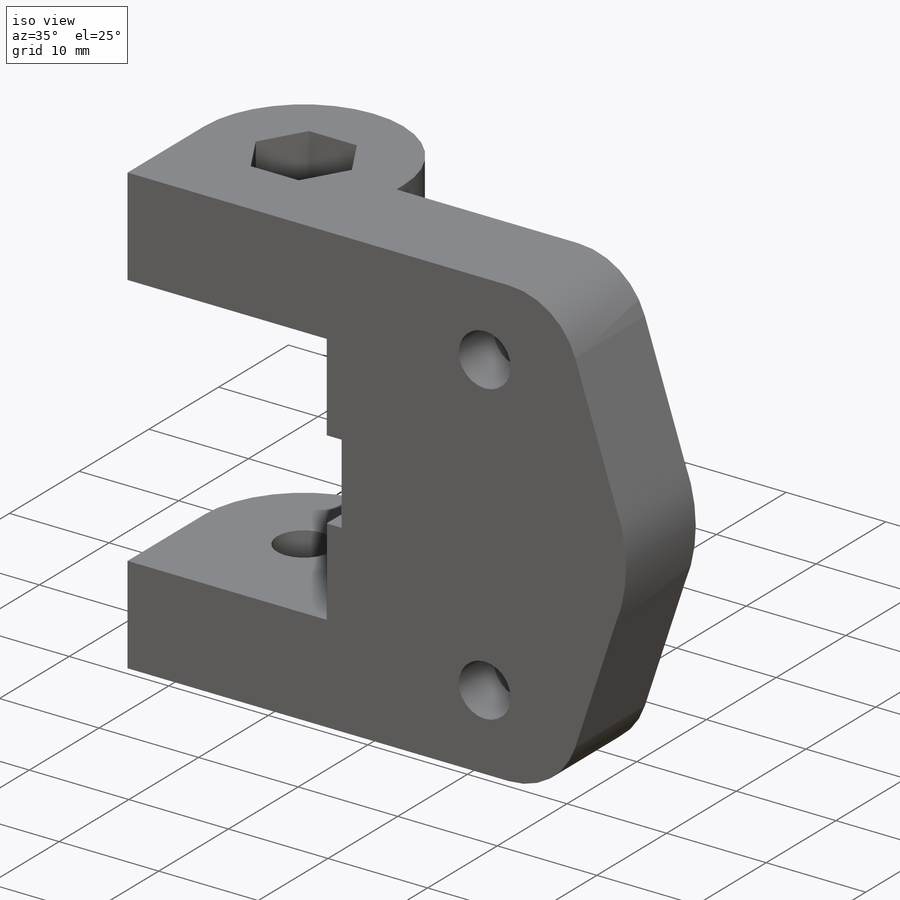
[diagram: iso view]
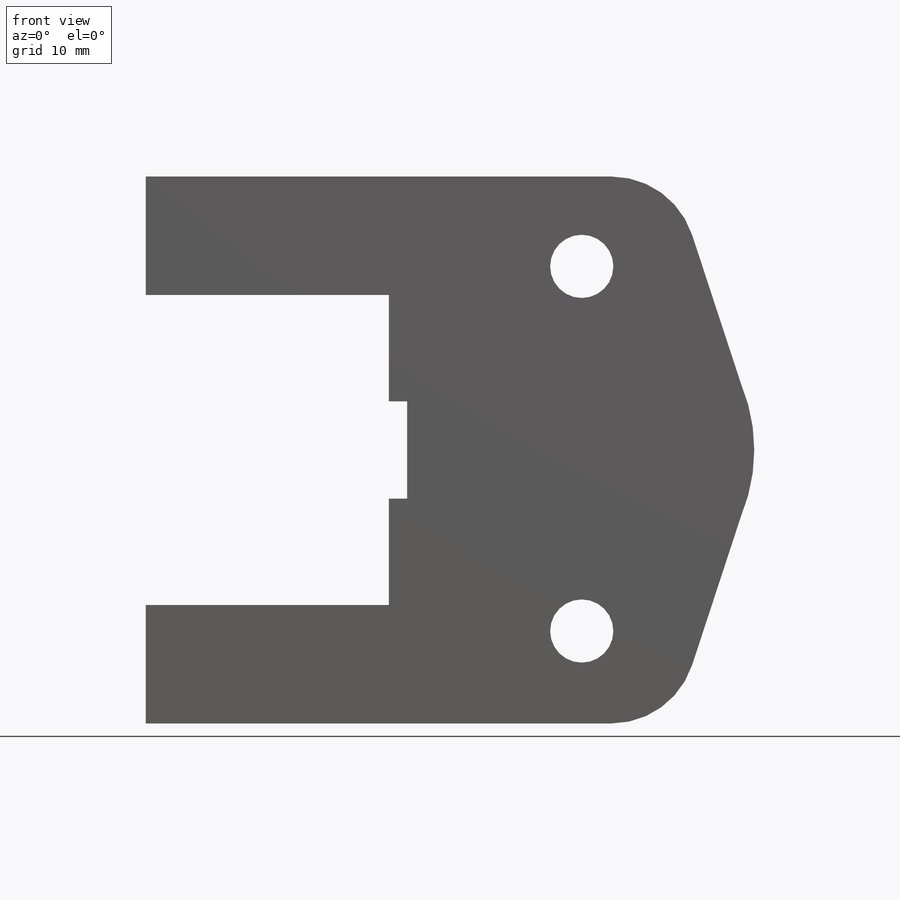
[diagram: front view]
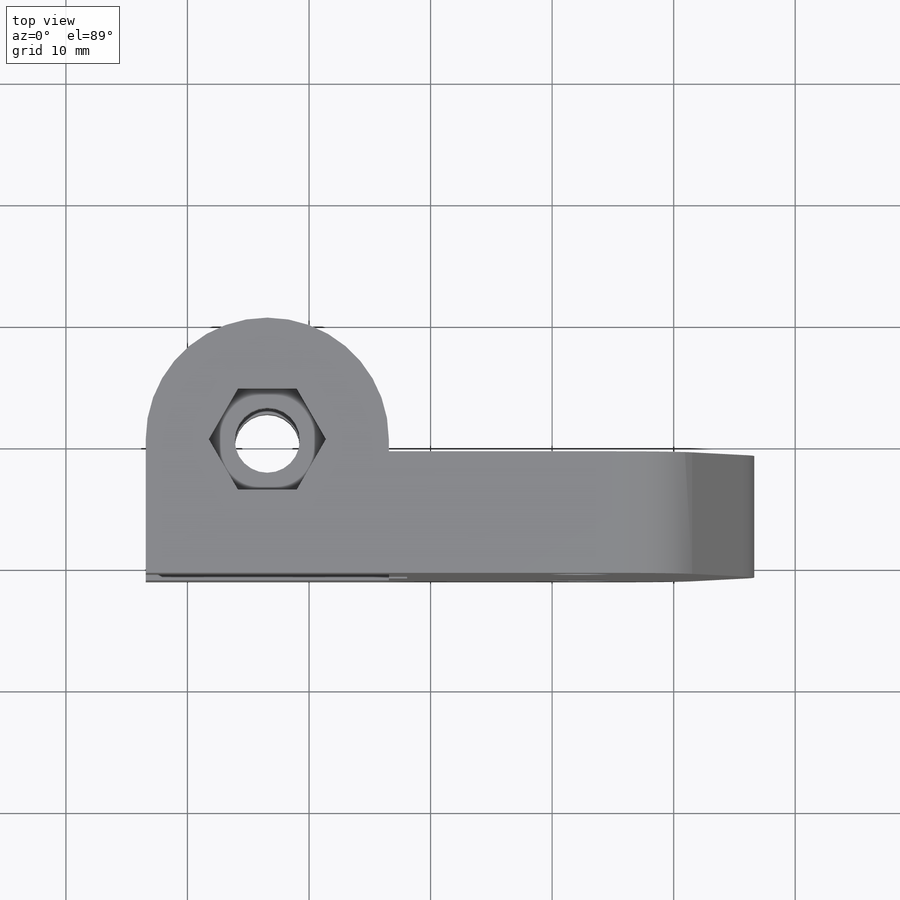
[diagram: top view]
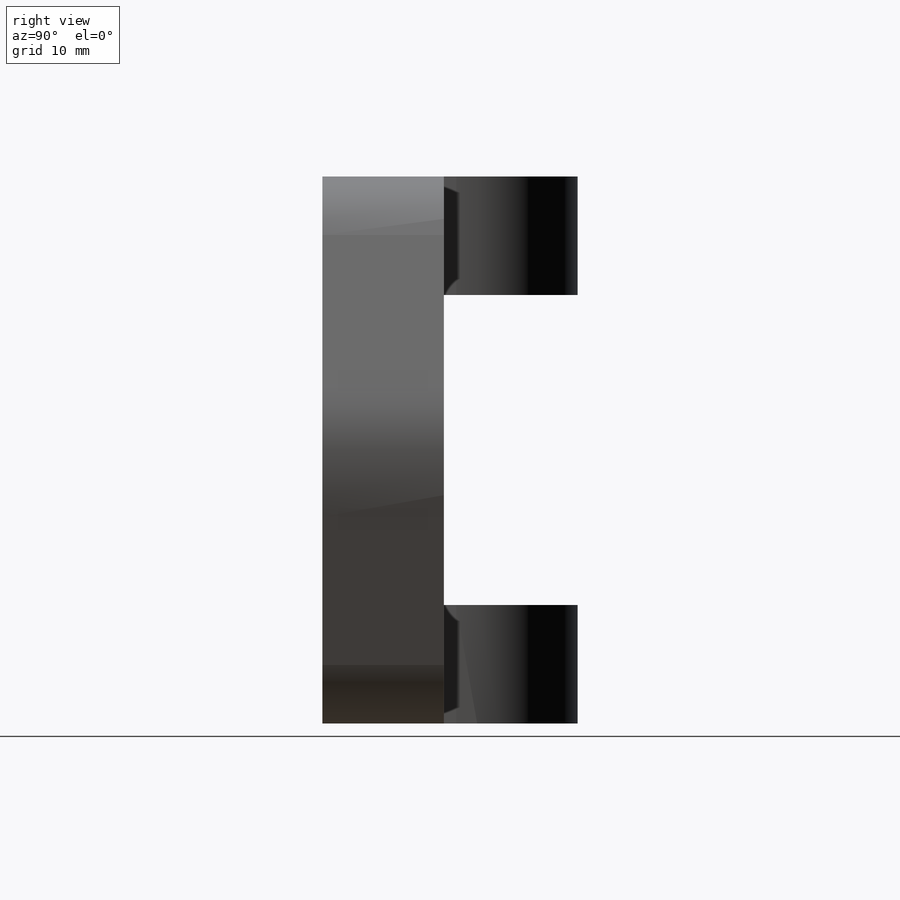
[diagram: right view]
SOLIDWORKS PART (.sldprt)
format: sldprt  version: not decoded by parser v0  size: 638,976 bytes
history: native  units: mm
features: sketch x11, extrude x6, cut_extrude x5, fillet x2, material x1 (+16 scaffold rows collapsed)
feature tree (41):
  scaffold x16  (default folders/planes/origin — collapsed)
  material  "Material <not specified>"
  sketch  "Sketch1"  dims[c1.D7=~6.369655mm c1.D5=5.2mm c1.D3=7.0mm c1.D8=~12.739309mm c1.D10=19.0mm c1.D11=7.0mm c1.D1=45.0mm c1.D2=20.5mm c2.D3=45.0mm c2.D4=20.0mm c2.D5=26.0mm c2.D6=10.0mm c3.D5=26.0mm c3.D7=8.35mm c3.D8=10.0mm c3.D9=1.5mm c3.D10=9.75mm c3.D6=30.0mm c4.D8=5.0mm c4.D2=25.5mm c5.D8=8.0mm c5.D3=~35.870431mm]
  extrude  "Boss-Extrude1"  Depth=10mm
  sketch  "Sketch2"  dims[D1=20.0mm]
  extrude  "Boss-Extrude4"  [1 undecoded]
  sketch  "Sketch18"
  extrude  "Boss-Extrude5"  Depth=9.75mm
  sketch  "Sketch19"  dims[D1=5.35mm]
  cut_extrude  "Cut-Extrude1"  [1 undecoded]
  sketch  "Sketch20"
  cut_extrude  "Cut-Extrude2"  Depth=1mm
  sketch  "Sketch21"
  extrude  "Boss-Extrude6"  Depth=8mm
  sketch  "Sketch22"
  cut_extrude  "Cut-Extrude3"  Depth=1mm
  sketch  "Sketch24"  dims[D1=7.0mm D2=7.0mm]
  extrude  "Boss-Extrude8"  Depth=1mm
  sketch  "Sketch25"
  extrude  "Boss-Extrude9"  Depth=5mm
  sketch  "Sketch26"  dims[D1=9.0mm]
  cut_extrude  "Cut-Extrude4"  Depth=5mm
  sketch  "Sketch27"  dims[D1=8.35mm]
  cut_extrude  "Cut-Extrude5"  Depth=5mm
  fillet  "Fillet1"  Radius=3mm
  fillet  "Fillet2"  Radius=10mm
decode coverage: 17 of 24 modeling features carry decoded parameters
note: ~ marks probable driven/reference dimensions
note: 2 parameter values undecoded
note: suppression state not decoded; provenance and decode notes live in map.json
